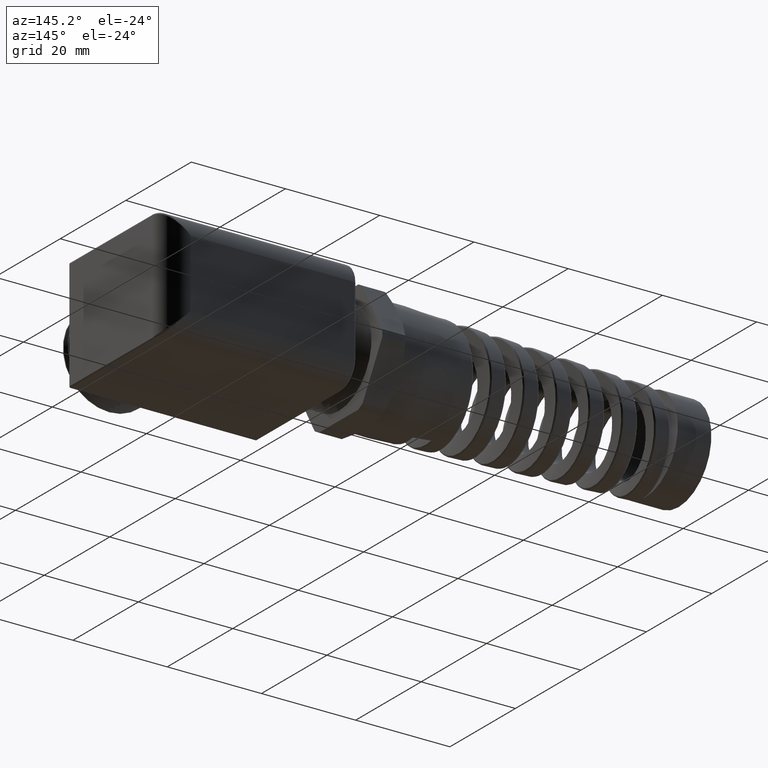
[diagram: clean part render]
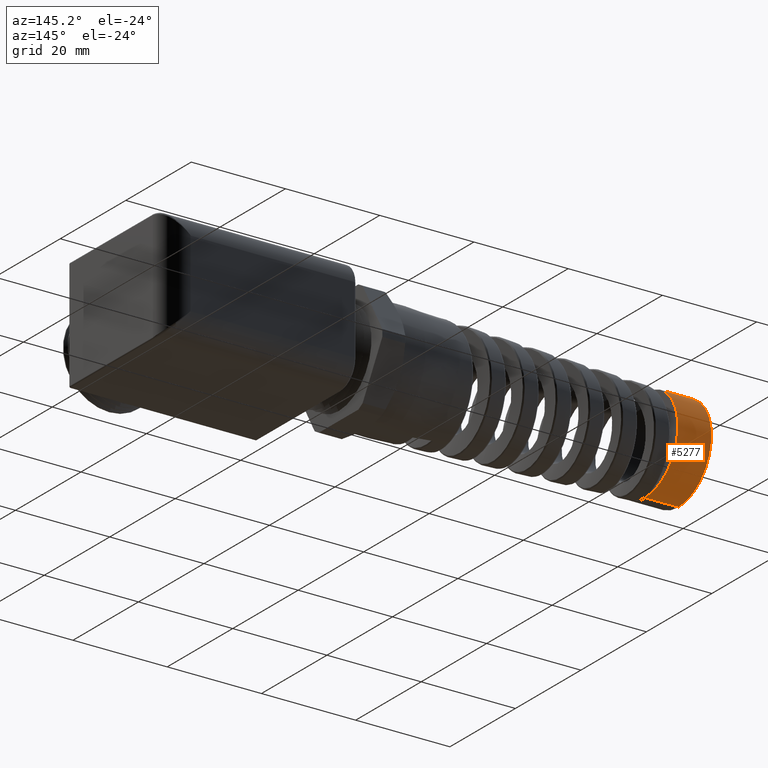
[diagram: same view with one face highlighted and labeled with its STEP entity id]
A machine part, auxiliary view. The second image highlights one B-rep face of the part: STEP entity #5277.
In plain terms, the highlighted cylindrical surface (partial cylindrical patch) has radius 10.0228 mm, axis along (1, 0, 0).
Its self-contained STEP definition (entity closure, byte-faithful):
#2459 = DIRECTION ( 'NONE',  ( 0.0000000000000000000, 0.0000000000000000000, 1.000000000000000000 ) ) ;
#2460 = DIRECTION ( 'NONE',  ( -1.000000000000000000, 0.0000000000000000000, 0.0000000000000000000 ) ) ;
#2461 = CARTESIAN_POINT ( 'NONE',  ( -2.831199999999999100, 0.0000000000000000000, 0.0000000000000000000 ) ) ;
#2462 = AXIS2_PLACEMENT_3D ( 'NONE', #2461, #2460, #2459 ) ;
#2478 = CIRCLE ( 'NONE', #2462, 0.3945990745134808100 ) ;
#2480 = DIRECTION ( 'NONE',  ( 0.0000000000000000000, 0.0000000000000000000, 1.000000000000000000 ) ) ;
#2481 = DIRECTION ( 'NONE',  ( -1.000000000000000000, 0.0000000000000000000, 0.0000000000000000000 ) ) ;
#2482 = AXIS2_PLACEMENT_3D ( 'NONE', #2483, #2481, #2480 ) ;
#2483 = CARTESIAN_POINT ( 'NONE',  ( -3.111999999999998800, 0.0000000000000000000, 0.0000000000000000000 ) ) ;
#2484 = CIRCLE ( 'NONE', #2482, 0.3945990745134808100 ) ;
#2495 = LINE ( 'NONE', #2507, #2506 ) ;
#2496 = CARTESIAN_POINT ( 'NONE',  ( -3.111999999999998800, 0.0000000000000000000, -0.3945990745134808100 ) ) ;
#2497 = CARTESIAN_POINT ( 'NONE',  ( -3.111999999999998800, 4.832444935494421200E-017, 0.3945990745134808100 ) ) ;
#2502 = CARTESIAN_POINT ( 'NONE',  ( -2.831199999999999100, 0.0000000000000000000, -0.3945990745134808100 ) ) ;
#2505 = DIRECTION ( 'NONE',  ( 1.000000000000000000, 0.0000000000000000000, 0.0000000000000000000 ) ) ;
#2506 = VECTOR ( 'NONE', #2505, 39.37007874015748100 ) ;
#2507 = CARTESIAN_POINT ( 'NONE',  ( -3.111999999999998800, 0.0000000000000000000, -0.3945990745134808100 ) ) ;
#3801 = DIRECTION ( 'NONE',  ( 1.000000000000000000, 0.0000000000000000000, 0.0000000000000000000 ) ) ;
#3802 = VECTOR ( 'NONE', #3801, 39.37007874015748100 ) ;
#3803 = CARTESIAN_POINT ( 'NONE',  ( -3.111999999999998800, 4.832444935494421200E-017, 0.3945990745134808100 ) ) ;
#3804 = LINE ( 'NONE', #3803, #3802 ) ;
#5009 = EDGE_CURVE ( 'NONE', #5038, #5039, #2484, .T. ) ;
#5015 = ORIENTED_EDGE ( 'NONE', *, *, #5291, .T. ) ;
#5016 = VERTEX_POINT ( 'NONE', #2502 ) ;
#5024 = ORIENTED_EDGE ( 'NONE', *, *, #5025, .T. ) ;
#5025 = EDGE_CURVE ( 'NONE', #5241, #5016, #2478, .T. ) ;
#5026 = ORIENTED_EDGE ( 'NONE', *, *, #5043, .F. ) ;
#5034 = ORIENTED_EDGE ( 'NONE', *, *, #5009, .F. ) ;
#5038 = VERTEX_POINT ( 'NONE', #2497 ) ;
#5039 = VERTEX_POINT ( 'NONE', #2496 ) ;
#5043 = EDGE_CURVE ( 'NONE', #5039, #5016, #2495, .T. ) ;
#5241 = VERTEX_POINT ( 'NONE', #11596 ) ;
#5277 = ADVANCED_FACE ( 'NONE', ( #11622 ), #11620, .T. ) ;
#5278 = EDGE_LOOP ( 'NONE', ( #5034, #5015, #5024, #5026 ) ) ;
#5291 = EDGE_CURVE ( 'NONE', #5038, #5241, #3804, .T. ) ;
#11596 = CARTESIAN_POINT ( 'NONE',  ( -2.831199999999999100, 4.832444935494421200E-017, 0.3945990745134808100 ) ) ;
#11616 = DIRECTION ( 'NONE',  ( 0.0000000000000000000, 0.0000000000000000000, -1.000000000000000000 ) ) ;
#11617 = DIRECTION ( 'NONE',  ( 1.000000000000000000, 0.0000000000000000000, 0.0000000000000000000 ) ) ;
#11618 = CARTESIAN_POINT ( 'NONE',  ( -3.111999999999998800, 0.0000000000000000000, 0.0000000000000000000 ) ) ;
#11619 = AXIS2_PLACEMENT_3D ( 'NONE', #11618, #11617, #11616 ) ;
#11620 = CYLINDRICAL_SURFACE ( 'NONE', #11619, 0.3945990745134808100 ) ;
#11622 = FACE_OUTER_BOUND ( 'NONE', #5278, .T. ) ;